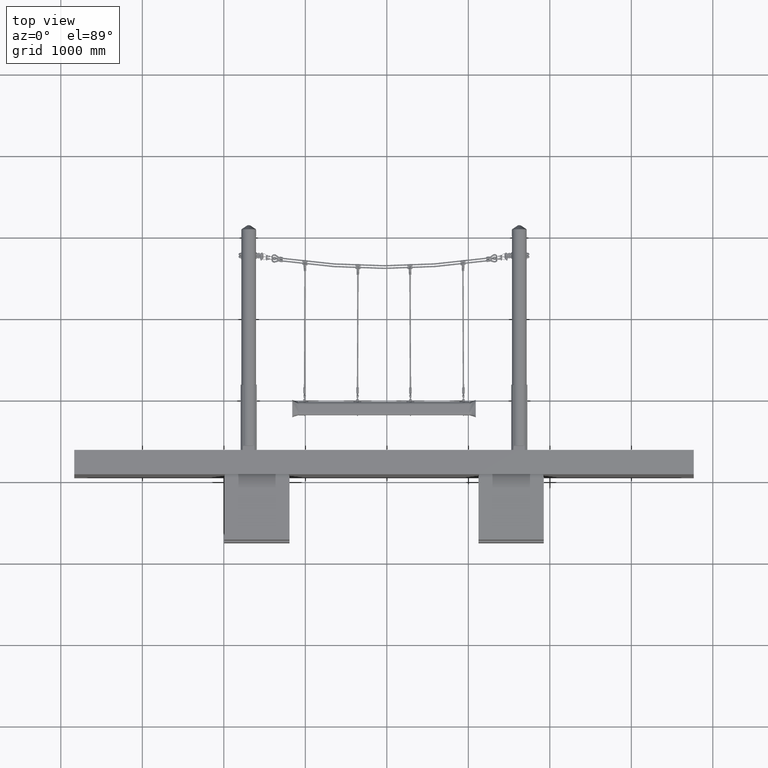
[diagram: clean part render]
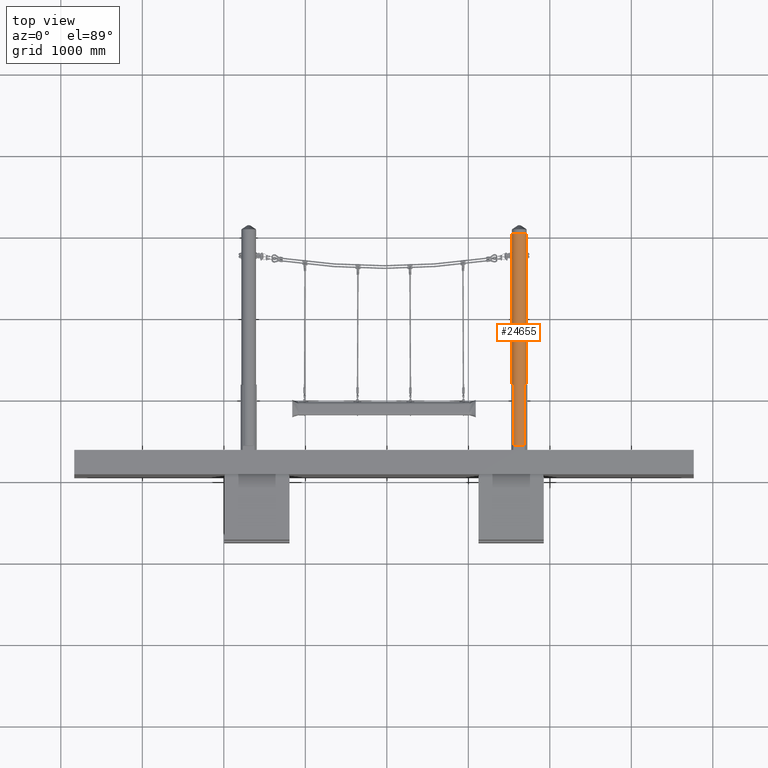
[diagram: same view with one face highlighted and labeled with its STEP entity id]
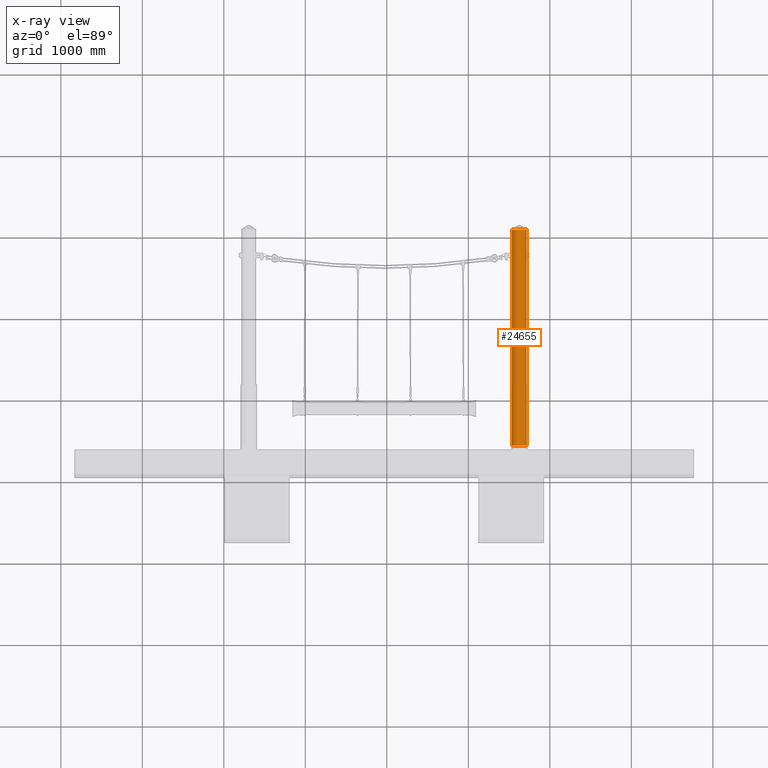
[diagram: x-ray of the same camera — body ghosted, the highlighted face saturated]
A machine part, top view. The second image highlights one B-rep face of the part: STEP entity #24655.
The next image is the same camera in x-ray: the body ghosted, the highlighted face saturated — about 0% of this face is hidden behind the body in this view.
In plain terms, the highlighted cylindrical surface (edge-blend (fillet) strip) has radius 90 mm, axis along (0, -1, -0).
Its self-contained STEP definition (entity closure, byte-faithful):
#6703 = B_SPLINE_CURVE_WITH_KNOTS ( 'NONE', 3,
 ( #49786, #49807, #49832, #49833, #49834, #49835, #49836, #49837, #49838, #49839, #49840, #49841, #49842, #49843, #49844, #49845, #49846, #49847, #49848, #49849, #49850, #49851, #49852 ),
 .UNSPECIFIED., .F., .F.,
 ( 4, 2, 2, 2, 2, 2, 2, 2, 1, 2, 2, 4 ),
 ( 0.0000000000000000000, 0.001662238849326768500, 0.002493358273990805900, 0.003324477698654843800, 0.004986716547984141100, 0.006648955397313438900, 0.008311194246642734900, 0.009142313671307749800, 0.009973433095972763000, 0.01080455252063777600, 0.01163567194530278800, 0.01329791079463255600 ),
 .UNSPECIFIED. ) ;
#6704 = B_SPLINE_CURVE_WITH_KNOTS ( 'NONE', 3,
 ( #49854, #49853, #49856, #49857, #49858, #49859, #49860, #49861, #49862, #49863, #49864, #49865, #49866, #49867, #49868, #49869, #49870, #49871, #49872, #49873, #49874, #49875, #49876 ),
 .UNSPECIFIED., .F., .F.,
 ( 4, 2, 2, 1, 2, 2, 2, 2, 2, 2, 2, 4 ),
 ( 0.02658968327866674500, 0.02825196243830364500, 0.02908310201812196500, 0.02991424159794028500, 0.03074538117775860900, 0.03157652075757692900, 0.03323879991721430400, 0.03490107907685167900, 0.03656335823648904800, 0.03739449781630773500, 0.03822563739612641600, 0.03988791655576379200 ),
 .UNSPECIFIED. ) ;
#6705 = B_SPLINE_CURVE_WITH_KNOTS ( 'NONE', 3,
 ( #49878, #49877, #49887, #49888, #49889, #49890, #49891, #49892, #49893, #49894, #49895, #49896, #49897, #49898, #49899, #49900, #49901, #49902, #49903, #49904, #49905, #49906, #49907 ),
 .UNSPECIFIED., .F., .F.,
 ( 4, 2, 2, 2, 2, 2, 2, 2, 1, 2, 2, 4 ),
 ( 0.03988790702803731600, 0.04154856187927408900, 0.04237888930489246800, 0.04320921673051085500, 0.04486987158174762800, 0.04653052643298440100, 0.04819118128422116700, 0.04902150870983955400, 0.04985183613545794000, 0.05068216356107632700, 0.05151249098669470600, 0.05317314583793147900 ),
 .UNSPECIFIED. ) ;
#6706 = B_SPLINE_CURVE_WITH_KNOTS ( 'NONE', 3,
 ( #49910, #49911, #49917, #49918, #49919, #49920, #49921, #49922, #49923, #49924, #49925, #49926, #49927, #49928, #49929, #49930, #49931, #49932, #49933, #49934, #49935, #49936, #49937 ),
 .UNSPECIFIED., .F., .F.,
 ( 4, 2, 2, 2, 2, 2, 2, 2, 1, 2, 2, 4 ),
 ( 0.03988791655576379200, 0.04154857144867162000, 0.04237889889512553400, 0.04320922634157944900, 0.04486988123448606300, 0.04653053612739267700, 0.04819119102029928400, 0.04902151846675259500, 0.04985184591320589900, 0.05068217335965920900, 0.05151250080611252000, 0.05317315569901887700 ),
 .UNSPECIFIED. ) ;
#11096 = CARTESIAN_POINT ( 'NONE',  ( 1.102182119232618100E-014, 0.0000000000000000000, 90.00000000000001400 ) ) ;
#11097 = CARTESIAN_POINT ( 'NONE',  ( 0.0000000000000000000, 0.0000000000000000000, -90.00000000000001400 ) ) ;
#11098 = CARTESIAN_POINT ( 'NONE',  ( 1.102182119235201400E-014, 2358.500000000000500, 90.00000000000001400 ) ) ;
#11099 = CARTESIAN_POINT ( 'NONE',  ( 0.0000000000000000000, 2650.000000000000000, -90.00000000000001400 ) ) ;
#11101 = CARTESIAN_POINT ( 'NONE',  ( 1.102182119232618100E-014, 2650.000000000000000, 90.00000000000001400 ) ) ;
#11102 = CARTESIAN_POINT ( 'NONE',  ( -1.193062404148389200E-013, 2358.500000000000500, -90.00000000000001400 ) ) ;
#11104 = CARTESIAN_POINT ( 'NONE',  ( 1.102182132336978100E-014, 2341.500000000000000, 90.00000000000001400 ) ) ;
#11107 = CARTESIAN_POINT ( 'NONE',  ( 8.500000000000035500, 2350.000000000000000, -89.59771202435921100 ) ) ;
#11111 = CARTESIAN_POINT ( 'NONE',  ( 8.500000000000035500, 2350.000000000000000, 89.59771202435919700 ) ) ;
#11115 = CARTESIAN_POINT ( 'NONE',  ( 5.907621547019113200E-023, 2341.500000000000000, -90.00000000000001400 ) ) ;
#19197 = EDGE_LOOP ( 'NONE', ( #23576, #23577, #23578, #23579, #23580, #23581, #23582, #23583, #23584, #23585 ) ) ;
#23576 = ORIENTED_EDGE ( 'NONE', *, *, #24892, .F. ) ;
#23577 = ORIENTED_EDGE ( 'NONE', *, *, #24893, .T. ) ;
#23578 = ORIENTED_EDGE ( 'NONE', *, *, #24894, .T. ) ;
#23579 = ORIENTED_EDGE ( 'NONE', *, *, #24889, .T. ) ;
#23580 = ORIENTED_EDGE ( 'NONE', *, *, #24895, .T. ) ;
#23581 = ORIENTED_EDGE ( 'NONE', *, *, #24896, .T. ) ;
#23582 = ORIENTED_EDGE ( 'NONE', *, *, #24897, .F. ) ;
#23583 = ORIENTED_EDGE ( 'NONE', *, *, #24891, .T. ) ;
#23584 = ORIENTED_EDGE ( 'NONE', *, *, #24898, .T. ) ;
#23585 = ORIENTED_EDGE ( 'NONE', *, *, #24899, .F. ) ;
#24655 = ADVANCED_FACE ( 'NONE', ( #48702 ), #48701, .T. ) ;
#24889 = EDGE_CURVE ( 'NONE', #30138, #30131, #6703, .T. ) ;
#24891 = EDGE_CURVE ( 'NONE', #30142, #30134, #6704, .T. ) ;
#24892 = EDGE_CURVE ( 'NONE', #30128, #30126, #50649, .T. ) ;
#24893 = EDGE_CURVE ( 'NONE', #30128, #30125, #49879, .T. ) ;
#24894 = EDGE_CURVE ( 'NONE', #30125, #30138, #6705, .T. ) ;
#24895 = EDGE_CURVE ( 'NONE', #30131, #30122, #49885, .T. ) ;
#24896 = EDGE_CURVE ( 'NONE', #30122, #30124, #50652, .T. ) ;
#24897 = EDGE_CURVE ( 'NONE', #30142, #30124, #49884, .T. ) ;
#24898 = EDGE_CURVE ( 'NONE', #30134, #30129, #6706, .T. ) ;
#24899 = EDGE_CURVE ( 'NONE', #30126, #30129, #49916, .T. ) ;
#30122 = VERTEX_POINT ( 'NONE', #11096 ) ;
#30124 = VERTEX_POINT ( 'NONE', #11097 ) ;
#30125 = VERTEX_POINT ( 'NONE', #11098 ) ;
#30126 = VERTEX_POINT ( 'NONE', #11099 ) ;
#30128 = VERTEX_POINT ( 'NONE', #11101 ) ;
#30129 = VERTEX_POINT ( 'NONE', #11102 ) ;
#30131 = VERTEX_POINT ( 'NONE', #11104 ) ;
#30134 = VERTEX_POINT ( 'NONE', #11107 ) ;
#30138 = VERTEX_POINT ( 'NONE', #11111 ) ;
#30142 = VERTEX_POINT ( 'NONE', #11115 ) ;
#42352 = AXIS2_PLACEMENT_3D ( 'NONE', #48703, #48699, #48705 ) ;
#48699 = DIRECTION ( 'NONE',  ( -0.0000000000000000000, -1.000000000000000000, -0.0000000000000000000 ) ) ;
#48701 = CYLINDRICAL_SURFACE ( 'NONE', #42352, 90.00000000000001400 ) ;
#48702 = FACE_OUTER_BOUND ( 'NONE', #19197, .T. ) ;
#48703 = CARTESIAN_POINT ( 'NONE',  ( 0.0000000000000000000, 2650.000000000000000, 0.0000000000000000000 ) ) ;
#48705 = DIRECTION ( 'NONE',  ( 0.0000000000000000000, 0.0000000000000000000, -1.000000000000000000 ) ) ;
#49786 = CARTESIAN_POINT ( 'NONE',  ( 8.500000000000035500, 2350.000000000000000, 89.59771202435919700 ) ) ;
#49807 = CARTESIAN_POINT ( 'NONE',  ( 8.500000000000030200, 2349.437918250168400, 89.59771202435916800 ) ) ;
#49829 = CARTESIAN_POINT ( 'NONE',  ( 1.102182119232618100E-014, 2650.000000000000000, 90.00000000000001400 ) ) ;
#49832 = CARTESIAN_POINT ( 'NONE',  ( 8.444796130330987100, 2348.885295446553300, 89.60299777111778500 ) ) ;
#49833 = CARTESIAN_POINT ( 'NONE',  ( 8.282615108602849200, 2348.069954937358500, 89.61808542239781200 ) ) ;
#49834 = CARTESIAN_POINT ( 'NONE',  ( 8.215226863343717800, 2347.800457157863500, 89.62430845244490700 ) ) ;
#49835 = CARTESIAN_POINT ( 'NONE',  ( 8.053190624398114400, 2347.266126941917700, 89.63901348610603700 ) ) ;
#49836 = CARTESIAN_POINT ( 'NONE',  ( 7.958108909743817300, 2347.000643269307600, 89.64753196414255900 ) ) ;
#49837 = CARTESIAN_POINT ( 'NONE',  ( 7.637834790773414500, 2346.228523819772800, 89.67557871814406700 ) ) ;
#49838 = CARTESIAN_POINT ( 'NONE',  ( 7.376563115276659300, 2345.740307818969500, 89.69772656439828000 ) ) ;
#49839 = CARTESIAN_POINT ( 'NONE',  ( 6.759333278505939900, 2344.816364740755900, 89.74634949592828500 ) ) ;
#49840 = CARTESIAN_POINT ( 'NONE',  ( 6.400290596855958500, 2344.379184830694200, 89.77299551757212700 ) ) ;
#49841 = CARTESIAN_POINT ( 'NONE',  ( 5.616056873222405900, 2343.595533738988700, 89.82546603897445400 ) ) ;
#49842 = CARTESIAN_POINT ( 'NONE',  ( 5.188087455050891500, 2343.243795572180700, 89.85154637239600100 ) ) ;
#49843 = CARTESIAN_POINT ( 'NONE',  ( 4.490885454874651300, 2342.777806063311800, 89.88818669363190800 ) ) ;
#49844 = CARTESIAN_POINT ( 'NONE',  ( 4.249512234113500300, 2342.633249322249900, 89.89995531447340200 ) ) ;
#49845 = CARTESIAN_POINT ( 'NONE',  ( 3.758796942387146300, 2342.371185195463100, 89.92180917507215600 ) ) ;
#49846 = CARTESIAN_POINT ( 'NONE',  ( 3.257577047119250700, 2342.134392989829400, 89.94211829184143900 ) ) ;
#49847 = CARTESIAN_POINT ( 'NONE',  ( 2.735622210557244300, 2341.947435783878500, 89.95880896130624600 ) ) ;
#49848 = CARTESIAN_POINT ( 'NONE',  ( 2.203136673716751900, 2341.785767952475000, 89.97342456199275800 ) ) ;
#49849 = CARTESIAN_POINT ( 'NONE',  ( 1.930107881889927500, 2341.717309068519600, 89.97972007247642500 ) ) ;
#49850 = CARTESIAN_POINT ( 'NONE',  ( 1.106799107919638600, 2341.553809276169900, 89.99486851350202700 ) ) ;
#49851 = CARTESIAN_POINT ( 'NONE',  ( 0.5548836691726581900, 2341.500000000000500, 90.00000000000001400 ) ) ;
#49852 = CARTESIAN_POINT ( 'NONE',  ( 1.102182132336978100E-014, 2341.500000000000000, 90.00000000000001400 ) ) ;
#49853 = CARTESIAN_POINT ( 'NONE',  ( 0.5550482386784541000, 2341.500000000000000, -90.00000000000002800 ) ) ;
#49854 = CARTESIAN_POINT ( 'NONE',  ( 5.907621547019113200E-023, 2341.500000000000000, -90.00000000000001400 ) ) ;
#49856 = CARTESIAN_POINT ( 'NONE',  ( 1.106906536948974600, 2341.553842178986500, -89.99486550533050900 ) ) ;
#49857 = CARTESIAN_POINT ( 'NONE',  ( 1.929800492390103100, 2341.717242242808000, -89.97972624380778900 ) ) ;
#49858 = CARTESIAN_POINT ( 'NONE',  ( 2.203038081986126600, 2341.785737002408000, -89.97342735234356300 ) ) ;
#49859 = CARTESIAN_POINT ( 'NONE',  ( 2.735777650572988500, 2341.947483993749800, -89.95880461058136700 ) ) ;
#49860 = CARTESIAN_POINT ( 'NONE',  ( 3.257904105115224400, 2342.134522285205500, -89.94210728755834300 ) ) ;
#49861 = CARTESIAN_POINT ( 'NONE',  ( 3.759149927112465800, 2342.371359699415300, -89.92179436554893400 ) ) ;
#49862 = CARTESIAN_POINT ( 'NONE',  ( 4.249825771475037200, 2342.633430790230700, -89.89994043939457000 ) ) ;
#49863 = CARTESIAN_POINT ( 'NONE',  ( 4.491121434988406800, 2342.777949953001600, -89.88817504592236700 ) ) ;
#49864 = CARTESIAN_POINT ( 'NONE',  ( 5.188488023467641600, 2343.244090991509900, -89.85152381207053900 ) ) ;
#49865 = CARTESIAN_POINT ( 'NONE',  ( 5.616481537163519300, 2343.595906647348300, -89.82543935704352100 ) ) ;
#49866 = CARTESIAN_POINT ( 'NONE',  ( 6.400655670936434800, 2344.379601125464400, -89.77296935896298200 ) ) ;
#49867 = CARTESIAN_POINT ( 'NONE',  ( 6.759663128669267000, 2344.816791507794700, -89.74632460607459400 ) ) ;
#49868 = CARTESIAN_POINT ( 'NONE',  ( 7.376866054551062000, 2345.740828355187700, -89.69770160447376400 ) ) ;
#49869 = CARTESIAN_POINT ( 'NONE',  ( 7.638058772562785300, 2346.229004186909200, -89.67555942406957600 ) ) ;
#49870 = CARTESIAN_POINT ( 'NONE',  ( 7.958197247234134700, 2347.000886067021800, -89.64752406805423800 ) ) ;
#49871 = CARTESIAN_POINT ( 'NONE',  ( 8.053260224687026200, 2347.266321716263500, -89.63900725093796500 ) ) ;
#49872 = CARTESIAN_POINT ( 'NONE',  ( 8.215335435987649100, 2347.800849964256500, -89.62429851806061300 ) ) ;
#49873 = CARTESIAN_POINT ( 'NONE',  ( 8.282720211516066300, 2348.070404525279200, -89.61807570066147800 ) ) ;
#49874 = CARTESIAN_POINT ( 'NONE',  ( 8.444862103880517200, 2348.885784922147600, -89.60299152156379400 ) ) ;
#49875 = CARTESIAN_POINT ( 'NONE',  ( 8.500000000000035500, 2349.438261968629800, -89.59771202435922500 ) ) ;
#49876 = CARTESIAN_POINT ( 'NONE',  ( 8.500000000000035500, 2350.000000000000000, -89.59771202435921100 ) ) ;
#49877 = CARTESIAN_POINT ( 'NONE',  ( 0.5611898015085408100, 2358.500000000000500, 90.00000000000002800 ) ) ;
#49878 = CARTESIAN_POINT ( 'NONE',  ( 1.102182119235201400E-014, 2358.500000000000500, 90.00000000000001400 ) ) ;
#49879 = LINE ( 'NONE', #49829, #50653 ) ;
#49880 = CARTESIAN_POINT ( 'NONE',  ( 0.0000000000000000000, 2650.000000000000000, 0.0000000000000000000 ) ) ;
#49881 = DIRECTION ( 'NONE',  ( 0.0000000000000000000, 1.000000000000000000, 0.0000000000000000000 ) ) ;
#49882 = DIRECTION ( 'NONE',  ( 0.0000000000000000000, 0.0000000000000000000, 1.000000000000000000 ) ) ;
#49883 = DIRECTION ( 'NONE',  ( -0.0000000000000000000, -1.000000000000000000, -0.0000000000000000000 ) ) ;
#49884 = LINE ( 'NONE', #49886, #50655 ) ;
#49885 = LINE ( 'NONE', #49908, #50654 ) ;
#49886 = CARTESIAN_POINT ( 'NONE',  ( 0.0000000000000000000, 2650.000000000000000, -90.00000000000001400 ) ) ;
#49887 = CARTESIAN_POINT ( 'NONE',  ( 1.114145113203585100, 2358.444833002664400, 89.99474236623176200 ) ) ;
#49888 = CARTESIAN_POINT ( 'NONE',  ( 1.928678110963130400, 2358.282924102533800, 89.97974185320113300 ) ) ;
#49889 = CARTESIAN_POINT ( 'NONE',  ( 2.197863863258366500, 2358.215662960711100, 89.97355520645857000 ) ) ;
#49890 = CARTESIAN_POINT ( 'NONE',  ( 2.731487786306244100, 2358.053986461292900, 89.95893627941768500 ) ) ;
#49891 = CARTESIAN_POINT ( 'NONE',  ( 2.996799442655564000, 2357.959067268543500, 89.95046120709605500 ) ) ;
#49892 = CARTESIAN_POINT ( 'NONE',  ( 3.768631430424480600, 2357.639218014982400, 89.92253627548991800 ) ) ;
#49893 = CARTESIAN_POINT ( 'NONE',  ( 4.256517936383864300, 2357.378343957052900, 89.90047653408403500 ) ) ;
#49894 = CARTESIAN_POINT ( 'NONE',  ( 5.179640712765365900, 2356.762338839337200, 89.85201693943670900 ) ) ;
#49895 = CARTESIAN_POINT ( 'NONE',  ( 5.616715131923620600, 2356.403853600096700, 89.82542351494964800 ) ) ;
#49896 = CARTESIAN_POINT ( 'NONE',  ( 6.400325337971954000, 2355.620735305346900, 89.77299167389580200 ) ) ;
#49897 = CARTESIAN_POINT ( 'NONE',  ( 6.751982139080654500, 2355.193490715973000, 89.74690977474760700 ) ) ;
#49898 = CARTESIAN_POINT ( 'NONE',  ( 7.217898458216834200, 2354.497759887177800, 89.71023470640160700 ) ) ;
#49899 = CARTESIAN_POINT ( 'NONE',  ( 7.362658127410370800, 2354.256589020099900, 89.69843141856002000 ) ) ;
#49900 = CARTESIAN_POINT ( 'NONE',  ( 7.625058399694353300, 2353.766400030320700, 89.67650650004428300 ) ) ;
#49901 = CARTESIAN_POINT ( 'NONE',  ( 7.862172317228101700, 2353.265791455253300, 89.65612038031616700 ) ) ;
#49902 = CARTESIAN_POINT ( 'NONE',  ( 8.049482044883324900, 2352.744639777844900, 89.63934660227438700 ) ) ;
#49903 = CARTESIAN_POINT ( 'NONE',  ( 8.211549227517839000, 2352.213067550951600, 89.62464549306527300 ) ) ;
#49904 = CARTESIAN_POINT ( 'NONE',  ( 8.280178040770721300, 2351.940901928500400, 89.61831114386896500 ) ) ;
#49905 = CARTESIAN_POINT ( 'NONE',  ( 8.444893788823298700, 2351.116943878247200, 89.60299063959956800 ) ) ;
#49906 = CARTESIAN_POINT ( 'NONE',  ( 8.500000000000035500, 2350.561546124991300, 89.59771202435919700 ) ) ;
#49907 = CARTESIAN_POINT ( 'NONE',  ( 8.500000000000035500, 2350.000000000000000, 89.59771202435919700 ) ) ;
#49908 = CARTESIAN_POINT ( 'NONE',  ( 1.102182119232618100E-014, 2650.000000000000000, 90.00000000000001400 ) ) ;
#49909 = DIRECTION ( 'NONE',  ( -0.0000000000000000000, -1.000000000000000000, -0.0000000000000000000 ) ) ;
#49910 = CARTESIAN_POINT ( 'NONE',  ( 8.500000000000035500, 2350.000000000000000, -89.59771202435921100 ) ) ;
#49911 = CARTESIAN_POINT ( 'NONE',  ( 8.500000000000037300, 2350.561189138971700, -89.59771202435915400 ) ) ;
#49912 = CARTESIAN_POINT ( 'NONE',  ( 0.0000000000000000000, 0.0000000000000000000, 0.0000000000000000000 ) ) ;
#49913 = DIRECTION ( 'NONE',  ( 0.0000000000000000000, 1.000000000000000000, 0.0000000000000000000 ) ) ;
#49914 = DIRECTION ( 'NONE',  ( 0.0000000000000000000, 0.0000000000000000000, 1.000000000000000000 ) ) ;
#49915 = DIRECTION ( 'NONE',  ( -0.0000000000000000000, -1.000000000000000000, -0.0000000000000000000 ) ) ;
#49916 = LINE ( 'NONE', #49938, #50658 ) ;
#49917 = CARTESIAN_POINT ( 'NONE',  ( 8.444832841934029900, 2351.114145953801700, -89.60299409040058500 ) ) ;
#49918 = CARTESIAN_POINT ( 'NONE',  ( 8.282924154893756000, 2351.928677831553600, -89.61805680423685800 ) ) ;
#49919 = CARTESIAN_POINT ( 'NONE',  ( 8.215663158344563400, 2352.197863030256000, -89.62426829534456400 ) ) ;
#49920 = CARTESIAN_POINT ( 'NONE',  ( 8.053987190106370900, 2352.731485561510500, -89.63894175495873600 ) ) ;
#49921 = CARTESIAN_POINT ( 'NONE',  ( 7.959068406659814500, 2352.996796332833600, -89.64744661310265900 ) ) ;
#49922 = CARTESIAN_POINT ( 'NONE',  ( 7.639220615724498800, 2353.768625881376900, -89.67545999317880500 ) ) ;
#49923 = CARTESIAN_POINT ( 'NONE',  ( 7.378347874696404000, 2354.256510994590400, -89.69757765189557100 ) ) ;
#49924 = CARTESIAN_POINT ( 'NONE',  ( 6.762345030545156500, 2355.179632505784000, -89.74612049367782200 ) ) ;
#49925 = CARTESIAN_POINT ( 'NONE',  ( 6.403861455473609100, 2355.616706117446500, -89.77273842054273700 ) ) ;
#49926 = CARTESIAN_POINT ( 'NONE',  ( 5.620745149467323300, 2356.400316641807000, -89.82517035346397400 ) ) ;
#49927 = CARTESIAN_POINT ( 'NONE',  ( 5.193500546864169300, 2356.751974744278400, -89.85122858679962100 ) ) ;
#49928 = CARTESIAN_POINT ( 'NONE',  ( 4.497767764096980000, 2357.217893588829600, -89.88784131773414300 ) ) ;
#49929 = CARTESIAN_POINT ( 'NONE',  ( 4.256596259757400500, 2357.362653976242200, -89.89961946254457800 ) ) ;
#49930 = CARTESIAN_POINT ( 'NONE',  ( 3.766405896979761800, 2357.625055534987500, -89.92149007800135500 ) ) ;
#49931 = CARTESIAN_POINT ( 'NONE',  ( 3.265795791207145400, 2357.862170751296200, -89.94181726681216600 ) ) ;
#49932 = CARTESIAN_POINT ( 'NONE',  ( 2.744642423986036300, 2358.049481171061000, -89.95853285965833400 ) ) ;
#49933 = CARTESIAN_POINT ( 'NONE',  ( 2.213068658669823800, 2358.211548956853200, -89.97317946704885100 ) ) ;
#49934 = CARTESIAN_POINT ( 'NONE',  ( 1.940902210814912500, 2358.280177979812800, -89.97948854406847400 ) ) ;
#49935 = CARTESIAN_POINT ( 'NONE',  ( 1.116943709366025300, 2358.444893831625400, -89.99474582955660700 ) ) ;
#49936 = CARTESIAN_POINT ( 'NONE',  ( 0.5615458057071909300, 2358.500000000000900, -90.00000000000002800 ) ) ;
#49937 = CARTESIAN_POINT ( 'NONE',  ( -1.193062404148389200E-013, 2358.500000000000500, -90.00000000000001400 ) ) ;
#49938 = CARTESIAN_POINT ( 'NONE',  ( 0.0000000000000000000, 2650.000000000000000, -90.00000000000001400 ) ) ;
#49939 = DIRECTION ( 'NONE',  ( -0.0000000000000000000, -1.000000000000000000, -0.0000000000000000000 ) ) ;
#50649 = CIRCLE ( 'NONE', #50651, 90.00000000000001400 ) ;
#50651 = AXIS2_PLACEMENT_3D ( 'NONE', #49880, #49881, #49882 ) ;
#50652 = CIRCLE ( 'NONE', #50657, 90.00000000000001400 ) ;
#50653 = VECTOR ( 'NONE', #49883, 1000.000000000000000 ) ;
#50654 = VECTOR ( 'NONE', #49909, 1000.000000000000000 ) ;
#50655 = VECTOR ( 'NONE', #49915, 1000.000000000000000 ) ;
#50657 = AXIS2_PLACEMENT_3D ( 'NONE', #49912, #49913, #49914 ) ;
#50658 = VECTOR ( 'NONE', #49939, 1000.000000000000000 ) ;